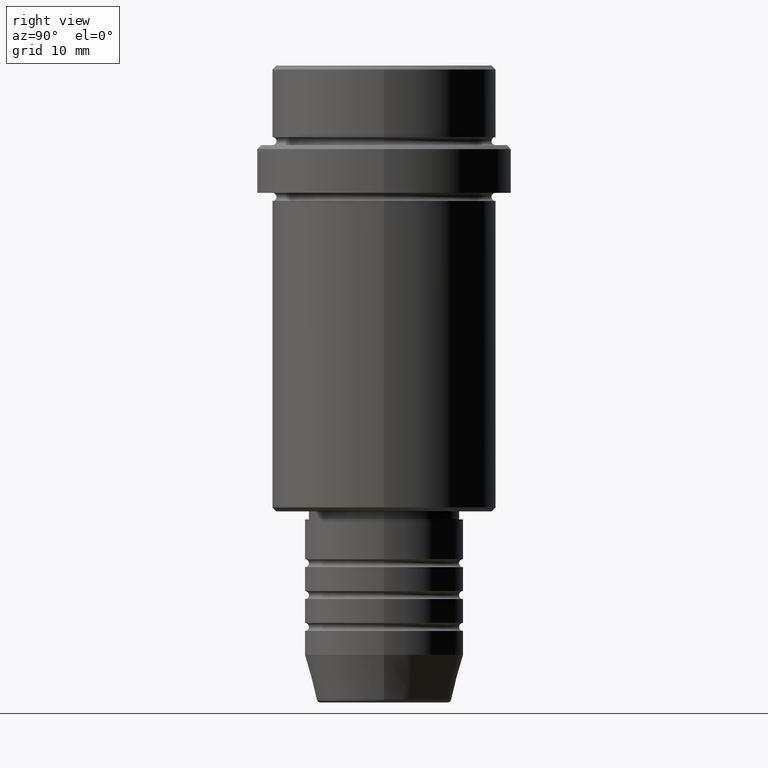
[diagram: clean part render]
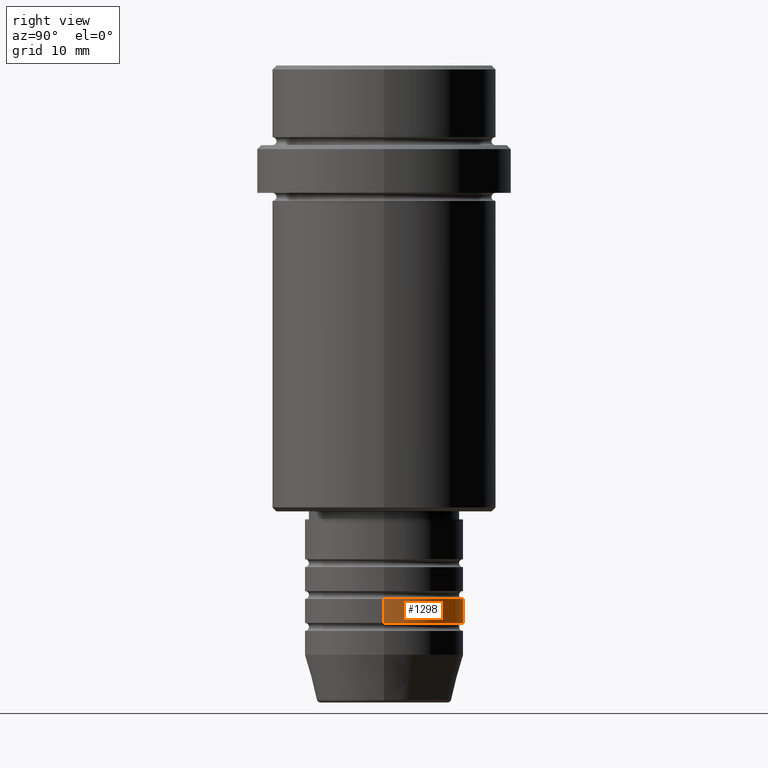
[diagram: same view with one face highlighted and labeled with its STEP entity id]
A machine part, right view. The second image highlights one B-rep face of the part: STEP entity #1298.
In plain terms, the highlighted cylindrical surface (partial cylindrical patch) has radius 10 mm, axis along (-0, -0, 1).
Its self-contained STEP definition (entity closure, byte-faithful):
#4 = LINE ( 'NONE', #221, #531 ) ;
#52 = CIRCLE ( 'NONE', #387, 10.00000000000000000 ) ;
#58 = ORIENTED_EDGE ( 'NONE', *, *, #69, .F. ) ;
#69 = EDGE_CURVE ( 'NONE', #330, #1295, #4, .T. ) ;
#82 = CARTESIAN_POINT ( 'NONE',  ( -10.00000000000000000, 1.224646799147353256E-15, 0.000000000000000000 ) ) ;
#195 = LINE ( 'NONE', #82, #1001 ) ;
#221 = CARTESIAN_POINT ( 'NONE',  ( 10.00000000000000000, 0.000000000000000000, 0.000000000000000000 ) ) ;
#282 = DIRECTION ( 'NONE',  ( -0.000000000000000000, -0.000000000000000000, 1.000000000000000000 ) ) ;
#330 = VERTEX_POINT ( 'NONE', #762 ) ;
#336 = DIRECTION ( 'NONE',  ( -0.000000000000000000, -0.000000000000000000, 1.000000000000000000 ) ) ;
#387 = AXIS2_PLACEMENT_3D ( 'NONE', #1301, #336, #769 ) ;
#475 = VERTEX_POINT ( 'NONE', #901 ) ;
#531 = VECTOR ( 'NONE', #783, 1000.000000000000000 ) ;
#556 = AXIS2_PLACEMENT_3D ( 'NONE', #857, #864, #1278 ) ;
#569 = ORIENTED_EDGE ( 'NONE', *, *, #1061, .F. ) ;
#639 = ORIENTED_EDGE ( 'NONE', *, *, #1388, .T. ) ;
#689 = EDGE_CURVE ( 'NONE', #330, #1389, #1265, .T. ) ;
#738 = FACE_OUTER_BOUND ( 'NONE', #1182, .T. ) ;
#761 = CARTESIAN_POINT ( 'NONE',  ( 0.000000000000000000, 0.000000000000000000, -69.99999999999990052 ) ) ;
#762 = CARTESIAN_POINT ( 'NONE',  ( 10.00000000000000000, 0.000000000000000000, -69.99999999999990052 ) ) ;
#769 = DIRECTION ( 'NONE',  ( 1.000000000000000000, 0.000000000000000000, 0.000000000000000000 ) ) ;
#783 = DIRECTION ( 'NONE',  ( -0.000000000000000000, -0.000000000000000000, 1.000000000000000000 ) ) ;
#857 = CARTESIAN_POINT ( 'NONE',  ( 0.000000000000000000, 0.000000000000000000, 0.000000000000000000 ) ) ;
#864 = DIRECTION ( 'NONE',  ( -0.000000000000000000, -0.000000000000000000, 1.000000000000000000 ) ) ;
#901 = CARTESIAN_POINT ( 'NONE',  ( -10.00000000000000000, 1.224646799147353256E-15, -66.99999999999988631 ) ) ;
#947 = CARTESIAN_POINT ( 'NONE',  ( 10.00000000000000000, 0.000000000000000000, -66.99999999999988631 ) ) ;
#960 = CYLINDRICAL_SURFACE ( 'NONE', #556, 10.00000000000000000 ) ;
#978 = DIRECTION ( 'NONE',  ( -0.000000000000000000, -0.000000000000000000, 1.000000000000000000 ) ) ;
#1001 = VECTOR ( 'NONE', #282, 1000.000000000000000 ) ;
#1006 = DIRECTION ( 'NONE',  ( 1.000000000000000000, 0.000000000000000000, 0.000000000000000000 ) ) ;
#1061 = EDGE_CURVE ( 'NONE', #1295, #475, #52, .T. ) ;
#1103 = ORIENTED_EDGE ( 'NONE', *, *, #689, .T. ) ;
#1142 = CARTESIAN_POINT ( 'NONE',  ( -10.00000000000000000, 1.224646799147353256E-15, -69.99999999999990052 ) ) ;
#1182 = EDGE_LOOP ( 'NONE', ( #1103, #639, #569, #58 ) ) ;
#1265 = CIRCLE ( 'NONE', #1331, 10.00000000000000000 ) ;
#1278 = DIRECTION ( 'NONE',  ( 1.000000000000000000, 0.000000000000000000, 0.000000000000000000 ) ) ;
#1295 = VERTEX_POINT ( 'NONE', #947 ) ;
#1298 = ADVANCED_FACE ( 'NONE', ( #738 ), #960, .T. ) ;
#1301 = CARTESIAN_POINT ( 'NONE',  ( 0.000000000000000000, 0.000000000000000000, -66.99999999999988631 ) ) ;
#1331 = AXIS2_PLACEMENT_3D ( 'NONE', #761, #978, #1006 ) ;
#1388 = EDGE_CURVE ( 'NONE', #1389, #475, #195, .T. ) ;
#1389 = VERTEX_POINT ( 'NONE', #1142 ) ;